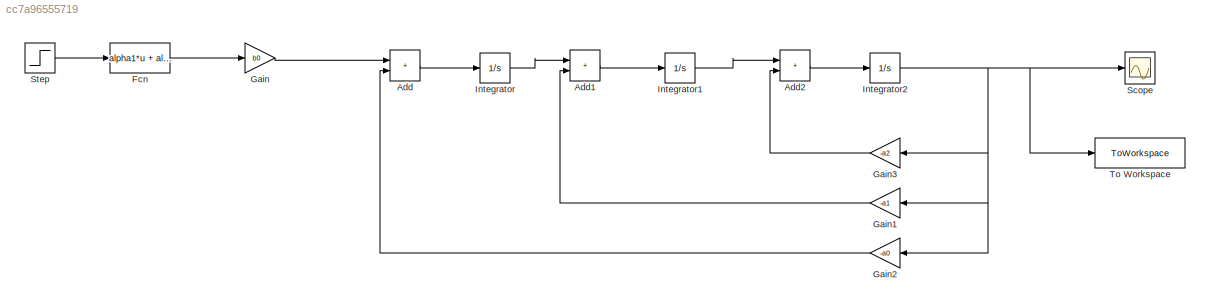
MODEL slx_cc7a96555719
KIND model
CONFIG AbsTol = auto
CONFIG EnableMultiTasking = off
CONFIG FixedStep = auto
CONFIG MaxStep = auto
CONFIG MinStep = auto
CONFIG RelTol = 1e-3
CONFIG SampleTimeConstraint = Unconstrained
CONFIG SolverName = VariableStepAuto
CONFIG StartTime = 0.0
CONFIG StopTime = 20.0
BLOCK [Sum] Add
  IconShape = rectangular
BLOCK [Sum] Add1
  IconShape = rectangular
BLOCK [Sum] Add2
  IconShape = rectangular
BLOCK [Fcn] Fcn
  Expr = alpha1*u + alpha2*u0^2+2*alpha2*u0*(u-u0) + alpha3*u0^3 + 3*alpha3*u0^2*(u-u0) + alpha4*u0^4 + 4*alpha4*u0^3*(u-u0)
BLOCK [Gain] Gain
  Gain = b0
BLOCK [Gain] Gain1
  Gain = -a1
  NameLocation = top
BLOCK [Gain] Gain2
  Gain = -a0
  NameLocation = top
BLOCK [Gain] Gain3
  Gain = -a2
  NameLocation = top
BLOCK [Integrator] Integrator
BLOCK [Integrator] Integrator1
BLOCK [Integrator] Integrator2
BLOCK [Scope] Scope
  Floating = off
  NumInputPorts = 1
  ScopeSpecificationString = Simulink.scopes.TimeScopeBlockCfg('CurrentConfiguration', extmgr.ConfigurationSet(extmgr.Configuration('Core','General UI',true),extmgr.Configuration('Core','Source UI',true),extmgr.Configuration('Sources','WiredSimulink',true),extmgr.Configuration('Visuals','Time Domain',true,'SerializedDisplays',{struct('MinYLimReal','-0.02882','MaxYLimReal','0.0032','YLabelReal','','MinYLimMag','0.00000','MaxYL...<+1329ch>
BLOCK [Step] Step
  SampleTime = 0
BLOCK [ToWorkspace] To Workspace
  FixptAsFi = on
  MaxDataPoints = inf
  SampleTime = -1
  SaveFormat = Structure With Time
  VariableName = sim
LINE Add1:1 -> Integrator1:1
LINE Add2:1 -> Integrator2:1
LINE Add:1 -> Integrator:1
LINE Fcn:1 -> Gain:1
LINE Gain1:1 -> Add1:2
LINE Gain2:1 -> Add:2
LINE Gain3:1 -> Add2:2
LINE Gain:1 -> Add:1
LINE Integrator1:1 -> Add2:1
NET Integrator2:1 -> Gain1:1, Gain2:1, Gain3:1, Scope:1, To Workspace:1
LINE Integrator:1 -> Add1:1
LINE Step:1 -> Fcn:1
note: NET lines group one-source signal fan-out (src -> all destinations, sorted); 1:1 wires keep LINE
